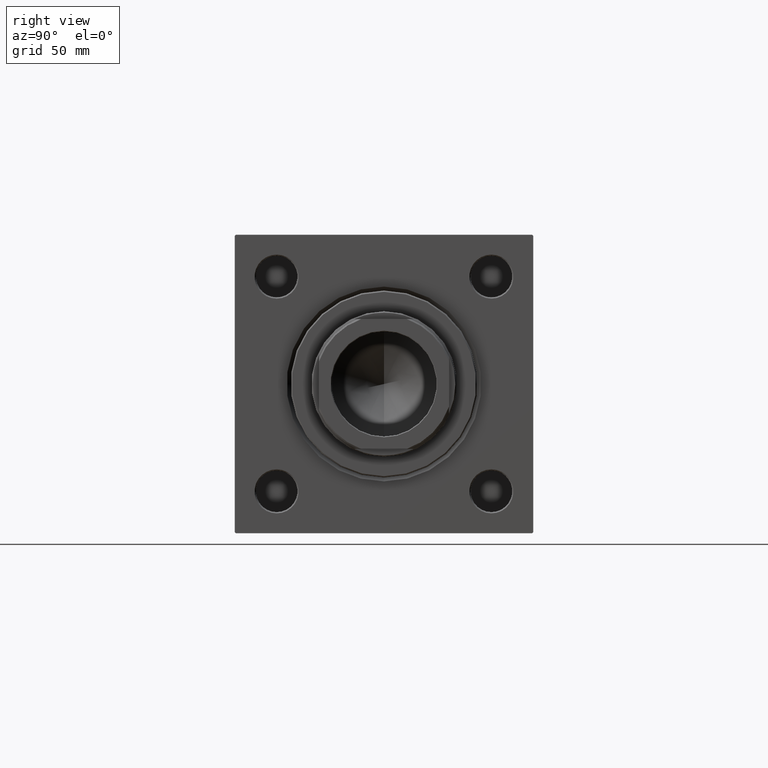
[diagram: clean part render]
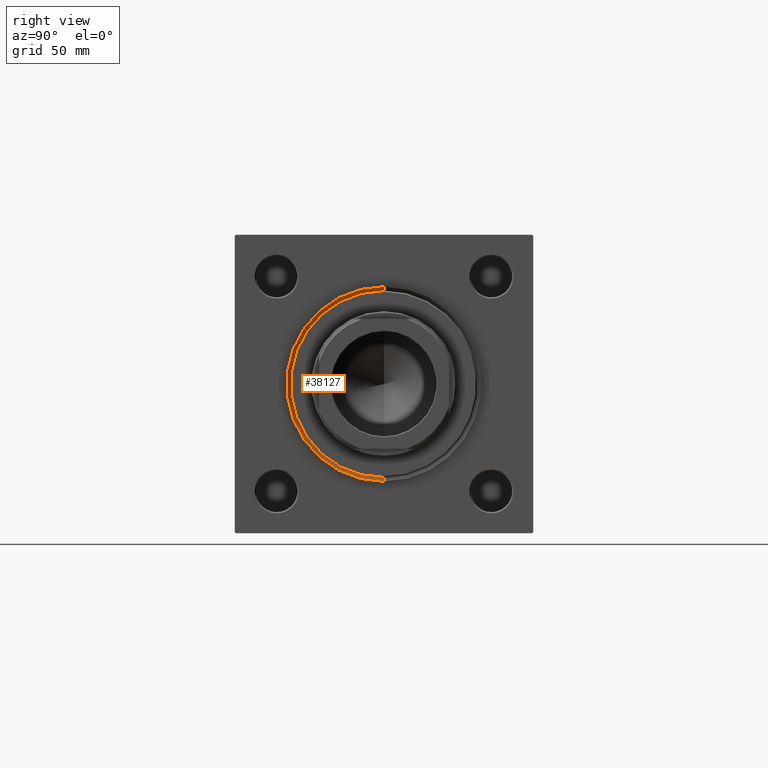
[diagram: same view with one face highlighted and labeled with its STEP entity id]
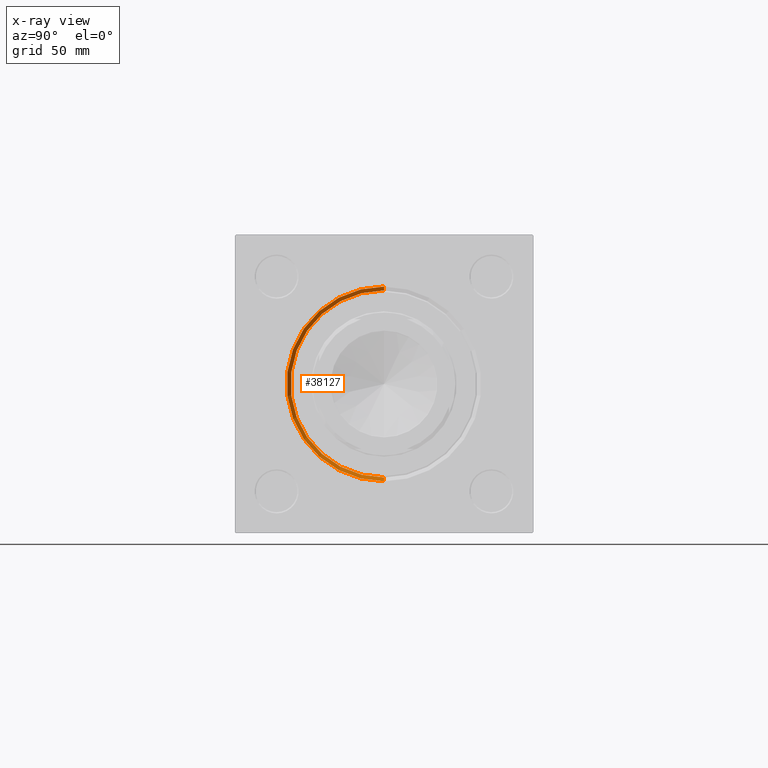
[diagram: x-ray of the same camera — body ghosted, the highlighted face saturated]
A machine part, right view. The second image highlights one B-rep face of the part: STEP entity #38127.
The next image is the same camera in x-ray: the body ghosted, the highlighted face saturated — about 0% of this face is hidden behind the body in this view.
In plain terms, the highlighted conical surface has half-angle 45 deg.
Its self-contained STEP definition (entity closure, byte-faithful):
#533 = VERTEX_POINT ( 'NONE', #38491 ) ;
#2568 = VERTEX_POINT ( 'NONE', #48600 ) ;
#2628 = DIRECTION ( 'NONE',  ( 0.000000000000000000, 0.000000000000000000, 1.000000000000000000 ) ) ;
#2765 = LINE ( 'NONE', #50390, #44918 ) ;
#3230 = CARTESIAN_POINT ( 'NONE',  ( 179.0000000000000000, 0.000000000000000000, 0.000000000000000000 ) ) ;
#3343 = VECTOR ( 'NONE', #6511, 1000.000000000000000 ) ;
#3415 = CARTESIAN_POINT ( 'NONE',  ( 177.4999999999999716, 4.408728476930470856E-15, 36.00000000000000000 ) ) ;
#4116 = CIRCLE ( 'NONE', #18851, 36.00000000000000000 ) ;
#6258 = LINE ( 'NONE', #18292, #3343 ) ;
#6511 = DIRECTION ( 'NONE',  ( 0.7071067811865524577, 0.000000000000000000, -0.7071067811865426878 ) ) ;
#6717 = EDGE_CURVE ( 'NONE', #44612, #533, #2765, .T. ) ;
#6754 = CARTESIAN_POINT ( 'NONE',  ( 177.4999999999999716, 0.000000000000000000, 0.000000000000000000 ) ) ;
#10937 = AXIS2_PLACEMENT_3D ( 'NONE', #3230, #18855, #35228 ) ;
#12929 = AXIS2_PLACEMENT_3D ( 'NONE', #6754, #19042, #18281 ) ;
#14517 = ORIENTED_EDGE ( 'NONE', *, *, #41735, .F. ) ;
#15824 = EDGE_CURVE ( 'NONE', #44612, #44121, #4116, .T. ) ;
#17141 = EDGE_CURVE ( 'NONE', #44121, #2568, #6258, .T. ) ;
#18281 = DIRECTION ( 'NONE',  ( 0.000000000000000000, 0.000000000000000000, -1.000000000000000000 ) ) ;
#18292 = CARTESIAN_POINT ( 'NONE',  ( 177.4999999999999716, 0.000000000000000000, -36.00000000000000000 ) ) ;
#18851 = AXIS2_PLACEMENT_3D ( 'NONE', #38224, #50262, #2628 ) ;
#18855 = DIRECTION ( 'NONE',  ( -1.000000000000000000, 0.000000000000000000, 0.000000000000000000 ) ) ;
#18969 = EDGE_LOOP ( 'NONE', ( #25819, #42840, #14517, #32740 ) ) ;
#19042 = DIRECTION ( 'NONE',  ( 1.000000000000000000, 0.000000000000000000, 0.000000000000000000 ) ) ;
#22368 = CIRCLE ( 'NONE', #10937, 37.50000000000000711 ) ;
#25819 = ORIENTED_EDGE ( 'NONE', *, *, #15824, .F. ) ;
#31537 = CARTESIAN_POINT ( 'NONE',  ( 177.4999999999999716, 0.000000000000000000, -36.00000000000000000 ) ) ;
#32740 = ORIENTED_EDGE ( 'NONE', *, *, #17141, .F. ) ;
#34986 = CONICAL_SURFACE ( 'NONE', #12929, 36.00000000000000000, 0.7853981633974415066 ) ;
#35228 = DIRECTION ( 'NONE',  ( 0.000000000000000000, 0.000000000000000000, 1.000000000000000000 ) ) ;
#38127 = ADVANCED_FACE ( 'NONE', ( #45957 ), #34986, .F. ) ;
#38224 = CARTESIAN_POINT ( 'NONE',  ( 177.4999999999999716, 0.000000000000000000, 0.000000000000000000 ) ) ;
#38491 = CARTESIAN_POINT ( 'NONE',  ( 179.0000000000000000, 4.592425496802575156E-15, 37.50000000000000711 ) ) ;
#40766 = DIRECTION ( 'NONE',  ( 0.7071067811865524577, 8.659560562354873694E-17, 0.7071067811865426878 ) ) ;
#41735 = EDGE_CURVE ( 'NONE', #2568, #533, #22368, .T. ) ;
#42840 = ORIENTED_EDGE ( 'NONE', *, *, #6717, .T. ) ;
#44121 = VERTEX_POINT ( 'NONE', #31537 ) ;
#44612 = VERTEX_POINT ( 'NONE', #3415 ) ;
#44918 = VECTOR ( 'NONE', #40766, 1000.000000000000000 ) ;
#45957 = FACE_OUTER_BOUND ( 'NONE', #18969, .T. ) ;
#48600 = CARTESIAN_POINT ( 'NONE',  ( 179.0000000000000000, 0.000000000000000000, -37.50000000000000711 ) ) ;
#50262 = DIRECTION ( 'NONE',  ( 1.000000000000000000, 0.000000000000000000, 0.000000000000000000 ) ) ;
#50390 = CARTESIAN_POINT ( 'NONE',  ( 177.4999999999999716, 4.408728476930470856E-15, 36.00000000000000000 ) ) ;